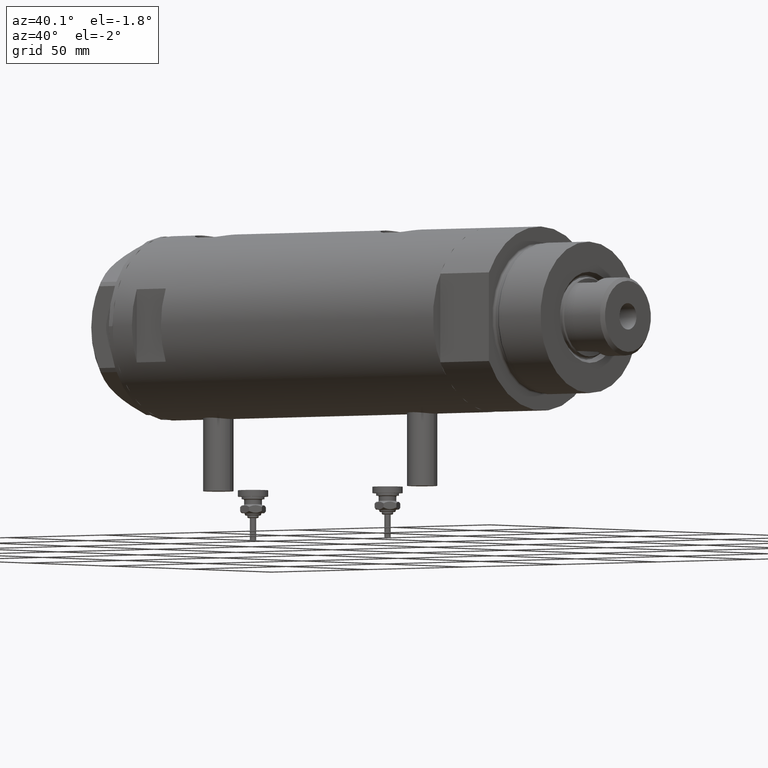
[diagram: clean part render]
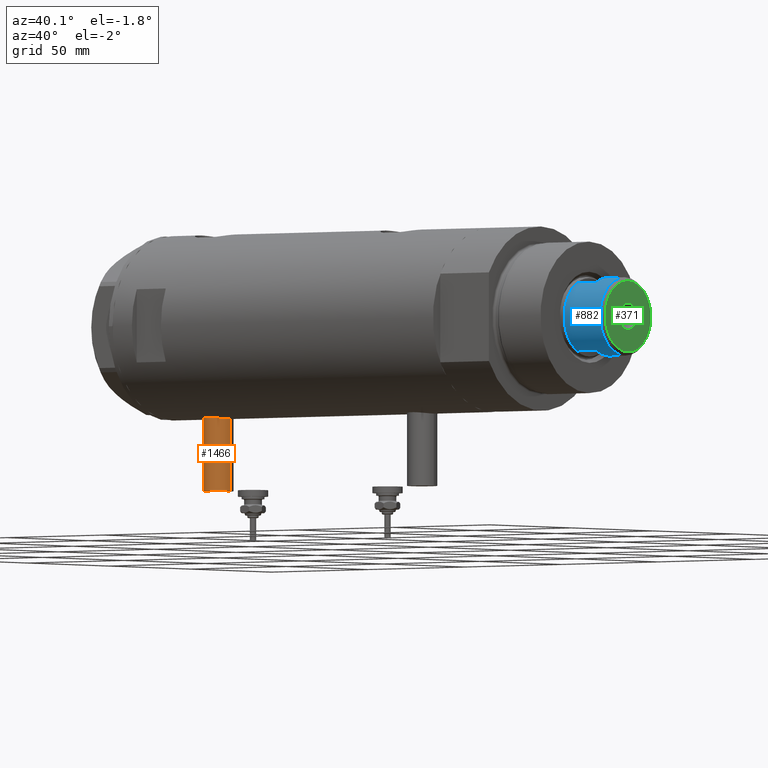
[diagram: same view with three faces highlighted in distinct colors, each labeled with its STEP entity id]
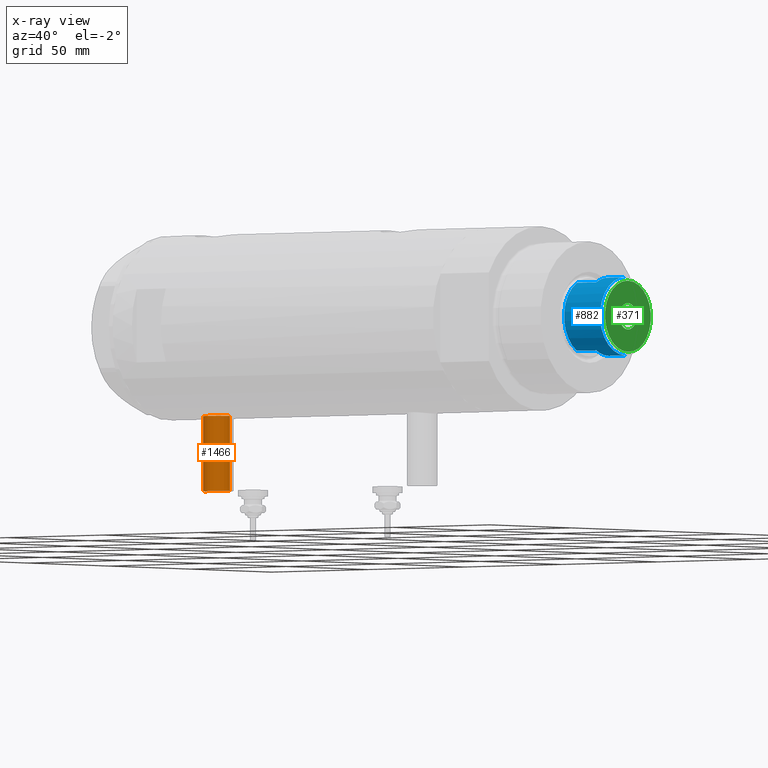
[diagram: x-ray of the same camera — body ghosted, the three highlighted faces saturated]
A machine part, auxiliary view with three faces highlighted in distinct colors.
The next image is the same camera in x-ray (body ghosted, the three faces saturated) — at least one of them is partly hidden behind the body in this view.
Their STEP definitions:

[orange] entity #1466 — the highlighted cylindrical surface (edge-blend (fillet) strip) has radius 6 mm, axis along (0, 0, 1).
#185 = FACE_OUTER_BOUND ( 'NONE', #1725, .T. ) ;
#260 = VECTOR ( 'NONE', #4007, 1000.000000000000000 ) ;
#491 = CYLINDRICAL_SURFACE ( 'NONE', #5262, 5.999999999999998224 ) ;
#984 = EDGE_CURVE ( 'NONE', #4992, #1266, #2172, .T. ) ;
#1130 = DIRECTION ( 'NONE',  ( 0.000000000000000000, 0.000000000000000000, 1.000000000000000000 ) ) ;
#1193 = ORIENTED_EDGE ( 'NONE', *, *, #3791, .F. ) ;
#1266 = VERTEX_POINT ( 'NONE', #4241 ) ;
#1466 = ADVANCED_FACE ( 'NONE', ( #185 ), #491, .T. ) ;
#1687 = CARTESIAN_POINT ( 'NONE',  ( -65.00000000000000000, 0.000000000000000000, 52.90000000000000568 ) ) ;
#1725 = EDGE_LOOP ( 'NONE', ( #1193, #1998, #5393, #4039 ) ) ;
#1777 = CARTESIAN_POINT ( 'NONE',  ( -65.00000000000000000, 0.000000000000000000, 58.89999999999999858 ) ) ;
#1998 = ORIENTED_EDGE ( 'NONE', *, *, #2945, .F. ) ;
#2024 = DIRECTION ( 'NONE',  ( 0.000000000000000000, 0.000000000000000000, -1.000000000000000000 ) ) ;
#2172 = LINE ( 'NONE', #4871, #260 ) ;
#2216 = EDGE_CURVE ( 'NONE', #1266, #4439, #5882, .T. ) ;
#2902 = CARTESIAN_POINT ( 'NONE',  ( -65.00000000000000000, 7.347880794884112834E-16, 64.90000000000000568 ) ) ;
#2945 = EDGE_CURVE ( 'NONE', #4992, #3117, #3306, .T. ) ;
#2987 = DIRECTION ( 'NONE',  ( 1.000000000000000000, -0.000000000000000000, -0.000000000000000000 ) ) ;
#3117 = VERTEX_POINT ( 'NONE', #4806 ) ;
#3306 = CIRCLE ( 'NONE', #4374, 5.999999999999998224 ) ;
#3791 = EDGE_CURVE ( 'NONE', #3117, #4439, #5211, .T. ) ;
#4007 = DIRECTION ( 'NONE',  ( 1.000000000000000000, -0.000000000000000000, -0.000000000000000000 ) ) ;
#4039 = ORIENTED_EDGE ( 'NONE', *, *, #2216, .T. ) ;
#4128 = DIRECTION ( 'NONE',  ( -1.000000000000000000, 0.000000000000000000, 0.000000000000000000 ) ) ;
#4230 = DIRECTION ( 'NONE',  ( 1.000000000000000000, -0.000000000000000000, -0.000000000000000000 ) ) ;
#4241 = CARTESIAN_POINT ( 'NONE',  ( -35.29999999999999716, 0.000000000000000000, 52.90000000000000568 ) ) ;
#4374 = AXIS2_PLACEMENT_3D ( 'NONE', #1777, #4128, #5448 ) ;
#4439 = VERTEX_POINT ( 'NONE', #5880 ) ;
#4642 = AXIS2_PLACEMENT_3D ( 'NONE', #5150, #5247, #1130 ) ;
#4806 = CARTESIAN_POINT ( 'NONE',  ( -65.00000000000000000, 7.347880794884108889E-16, 64.90000000000000568 ) ) ;
#4871 = CARTESIAN_POINT ( 'NONE',  ( -65.00000000000000000, 0.000000000000000000, 52.90000000000000568 ) ) ;
#4992 = VERTEX_POINT ( 'NONE', #1687 ) ;
#5057 = CARTESIAN_POINT ( 'NONE',  ( -65.00000000000000000, 0.000000000000000000, 58.89999999999999858 ) ) ;
#5150 = CARTESIAN_POINT ( 'NONE',  ( -35.29999999999999716, 0.000000000000000000, 58.89999999999999858 ) ) ;
#5211 = LINE ( 'NONE', #2902, #5332 ) ;
#5247 = DIRECTION ( 'NONE',  ( -1.000000000000000000, 0.000000000000000000, 0.000000000000000000 ) ) ;
#5262 = AXIS2_PLACEMENT_3D ( 'NONE', #5057, #2987, #2024 ) ;
#5332 = VECTOR ( 'NONE', #4230, 1000.000000000000000 ) ;
#5393 = ORIENTED_EDGE ( 'NONE', *, *, #984, .T. ) ;
#5448 = DIRECTION ( 'NONE',  ( 0.000000000000000000, 0.000000000000000000, 1.000000000000000000 ) ) ;
#5880 = CARTESIAN_POINT ( 'NONE',  ( -35.29999999999999716, 7.347880794884108889E-16, 64.90000000000000568 ) ) ;
#5882 = CIRCLE ( 'NONE', #4642, 5.999999999999998224 ) ;

[blue] entity #882 — the highlighted cylindrical surface (partial cylindrical patch) has radius 15.5 mm, axis along (-1, -0, 0).
#13 = EDGE_CURVE ( 'NONE', #1677, #3091, #4954, .T. ) ;
#27 = VECTOR ( 'NONE', #489, 1000.000000000000000 ) ;
#370 = CARTESIAN_POINT ( 'NONE',  ( 15.50000000000000178, 1.898202538678397557E-15, 200.0000000000000000 ) ) ;
#387 = CARTESIAN_POINT ( 'NONE',  ( 13.48630416385453046, -7.639999999999995239, 200.0000000000000000 ) ) ;
#489 = DIRECTION ( 'NONE',  ( -0.000000000000000000, -0.000000000000000000, -1.000000000000000000 ) ) ;
#507 = CARTESIAN_POINT ( 'NONE',  ( 15.49999999999999822, 1.898202538678397163E-15, 208.5999999999999659 ) ) ;
#644 = CARTESIAN_POINT ( 'NONE',  ( -15.50000000000000178, 0.000000000000000000, 200.0000000000000000 ) ) ;
#764 = DIRECTION ( 'NONE',  ( 0.000000000000000000, 0.000000000000000000, 1.000000000000000000 ) ) ;
#859 = ORIENTED_EDGE ( 'NONE', *, *, #4185, .F. ) ;
#882 = ADVANCED_FACE ( 'NONE', ( #3073 ), #1661, .T. ) ;
#983 = CARTESIAN_POINT ( 'NONE',  ( 0.000000000000000000, 0.000000000000000000, 200.0000000000000000 ) ) ;
#1092 = CARTESIAN_POINT ( 'NONE',  ( -13.48630416385452335, -7.640000000000004121, 200.0000000000000000 ) ) ;
#1154 = CARTESIAN_POINT ( 'NONE',  ( 0.000000000000000000, 0.000000000000000000, 208.5999999999999659 ) ) ;
#1244 = VERTEX_POINT ( 'NONE', #5574 ) ;
#1260 = EDGE_CURVE ( 'NONE', #1677, #1244, #3783, .T. ) ;
#1390 = CIRCLE ( 'NONE', #5413, 15.49999999999999822 ) ;
#1419 = VERTEX_POINT ( 'NONE', #4754 ) ;
#1423 = CARTESIAN_POINT ( 'NONE',  ( 15.49999999999999822, 1.898202538678397163E-15, 200.0000000000000000 ) ) ;
#1618 = VECTOR ( 'NONE', #3757, 1000.000000000000000 ) ;
#1661 = CYLINDRICAL_SURFACE ( 'NONE', #4403, 15.49999999999999822 ) ;
#1677 = VERTEX_POINT ( 'NONE', #387 ) ;
#1741 = EDGE_LOOP ( 'NONE', ( #859, #5922, #5650, #5653, #4661, #2056, #2885, #2882 ) ) ;
#1916 = CARTESIAN_POINT ( 'NONE',  ( 13.48630416385453046, -7.639999999999995239, 200.0000000000000000 ) ) ;
#1994 = CIRCLE ( 'NONE', #4780, 15.50000000000000000 ) ;
#2056 = ORIENTED_EDGE ( 'NONE', *, *, #3427, .T. ) ;
#2230 = CARTESIAN_POINT ( 'NONE',  ( 0.000000000000000000, 0.000000000000000000, 190.0000000000000000 ) ) ;
#2471 = EDGE_CURVE ( 'NONE', #4821, #5728, #2775, .T. ) ;
#2591 = DIRECTION ( 'NONE',  ( -1.000000000000000000, 0.000000000000000000, 0.000000000000000000 ) ) ;
#2597 = DIRECTION ( 'NONE',  ( 1.000000000000000000, 0.000000000000000000, 0.000000000000000000 ) ) ;
#2650 = CARTESIAN_POINT ( 'NONE',  ( 0.000000000000000000, 0.000000000000000000, 200.0000000000000000 ) ) ;
#2653 = VERTEX_POINT ( 'NONE', #644 ) ;
#2775 = LINE ( 'NONE', #4611, #27 ) ;
#2817 = DIRECTION ( 'NONE',  ( 0.000000000000000000, 0.000000000000000000, 1.000000000000000000 ) ) ;
#2826 = VERTEX_POINT ( 'NONE', #507 ) ;
#2866 = LINE ( 'NONE', #1423, #3617 ) ;
#2882 = ORIENTED_EDGE ( 'NONE', *, *, #13, .T. ) ;
#2885 = ORIENTED_EDGE ( 'NONE', *, *, #1260, .F. ) ;
#3073 = FACE_OUTER_BOUND ( 'NONE', #1741, .T. ) ;
#3091 = VERTEX_POINT ( 'NONE', #370 ) ;
#3131 = CIRCLE ( 'NONE', #4950, 15.49999999999999822 ) ;
#3388 = CARTESIAN_POINT ( 'NONE',  ( -13.48630416385452513, -7.639999999999921521, 190.0000000000000000 ) ) ;
#3427 = EDGE_CURVE ( 'NONE', #5728, #1244, #1390, .T. ) ;
#3617 = VECTOR ( 'NONE', #5175, 1000.000000000000000 ) ;
#3757 = DIRECTION ( 'NONE',  ( -0.000000000000000000, -0.000000000000000000, -1.000000000000000000 ) ) ;
#3783 = LINE ( 'NONE', #1916, #1618 ) ;
#3898 = CARTESIAN_POINT ( 'NONE',  ( 0.000000000000000000, 0.000000000000000000, 200.0000000000000000 ) ) ;
#4024 = CARTESIAN_POINT ( 'NONE',  ( -15.49999999999999822, 0.000000000000000000, 200.0000000000000000 ) ) ;
#4053 = EDGE_CURVE ( 'NONE', #1419, #2653, #4069, .T. ) ;
#4066 = DIRECTION ( 'NONE',  ( 0.000000000000000000, 0.000000000000000000, 1.000000000000000000 ) ) ;
#4069 = LINE ( 'NONE', #4024, #4289 ) ;
#4185 = EDGE_CURVE ( 'NONE', #2826, #3091, #2866, .T. ) ;
#4289 = VECTOR ( 'NONE', #5019, 1000.000000000000000 ) ;
#4393 = EDGE_CURVE ( 'NONE', #2826, #1419, #3131, .T. ) ;
#4403 = AXIS2_PLACEMENT_3D ( 'NONE', #2650, #5852, #2591 ) ;
#4611 = CARTESIAN_POINT ( 'NONE',  ( -13.48630416385452691, -7.640000000000001457, 200.0000000000000000 ) ) ;
#4655 = DIRECTION ( 'NONE',  ( 1.000000000000000000, 0.000000000000000000, 0.000000000000000000 ) ) ;
#4661 = ORIENTED_EDGE ( 'NONE', *, *, #2471, .T. ) ;
#4754 = CARTESIAN_POINT ( 'NONE',  ( -15.49999999999999822, 0.000000000000000000, 208.5999999999999659 ) ) ;
#4780 = AXIS2_PLACEMENT_3D ( 'NONE', #3898, #764, #2597 ) ;
#4821 = VERTEX_POINT ( 'NONE', #1092 ) ;
#4950 = AXIS2_PLACEMENT_3D ( 'NONE', #1154, #5770, #5747 ) ;
#4954 = CIRCLE ( 'NONE', #5812, 15.50000000000000000 ) ;
#5019 = DIRECTION ( 'NONE',  ( -0.000000000000000000, -0.000000000000000000, -1.000000000000000000 ) ) ;
#5175 = DIRECTION ( 'NONE',  ( -0.000000000000000000, -0.000000000000000000, -1.000000000000000000 ) ) ;
#5413 = AXIS2_PLACEMENT_3D ( 'NONE', #2230, #4066, #5920 ) ;
#5574 = CARTESIAN_POINT ( 'NONE',  ( 13.48630416385452691, -7.639999999999914415, 190.0000000000000000 ) ) ;
#5598 = EDGE_CURVE ( 'NONE', #2653, #4821, #1994, .T. ) ;
#5650 = ORIENTED_EDGE ( 'NONE', *, *, #4053, .T. ) ;
#5653 = ORIENTED_EDGE ( 'NONE', *, *, #5598, .T. ) ;
#5728 = VERTEX_POINT ( 'NONE', #3388 ) ;
#5747 = DIRECTION ( 'NONE',  ( 1.000000000000000000, 0.000000000000000000, 0.000000000000000000 ) ) ;
#5770 = DIRECTION ( 'NONE',  ( 0.000000000000000000, 0.000000000000000000, -1.000000000000000000 ) ) ;
#5812 = AXIS2_PLACEMENT_3D ( 'NONE', #983, #2817, #4655 ) ;
#5852 = DIRECTION ( 'NONE',  ( -0.000000000000000000, -0.000000000000000000, -1.000000000000000000 ) ) ;
#5920 = DIRECTION ( 'NONE',  ( 1.000000000000000000, 0.000000000000000000, 0.000000000000000000 ) ) ;
#5922 = ORIENTED_EDGE ( 'NONE', *, *, #4393, .T. ) ;

[green] entity #371 — the highlighted planar face has unit normal (1, 0, -0).
#11 = CARTESIAN_POINT ( 'NONE',  ( 0.000000000000000000, 0.000000000000000000, 210.0000000000000284 ) ) ;
#128 = EDGE_CURVE ( 'NONE', #5911, #4142, #3534, .T. ) ;
#371 = ADVANCED_FACE ( 'NONE', ( #686, #2424 ), #2845, .T. ) ;
#379 = ORIENTED_EDGE ( 'NONE', *, *, #128, .T. ) ;
#390 = EDGE_CURVE ( 'NONE', #2314, #3700, #2473, .T. ) ;
#447 = AXIS2_PLACEMENT_3D ( 'NONE', #4678, #1132, #564 ) ;
#472 = ORIENTED_EDGE ( 'NONE', *, *, #977, .F. ) ;
#499 = DIRECTION ( 'NONE',  ( 0.000000000000000000, 0.000000000000000000, 1.000000000000000000 ) ) ;
#564 = DIRECTION ( 'NONE',  ( 1.000000000000000000, 0.000000000000000000, -0.000000000000000000 ) ) ;
#642 = AXIS2_PLACEMENT_3D ( 'NONE', #5671, #1098, #3815 ) ;
#686 = FACE_OUTER_BOUND ( 'NONE', #3572, .T. ) ;
#724 = CARTESIAN_POINT ( 'NONE',  ( 0.000000000000000000, 0.000000000000000000, 210.0000000000000284 ) ) ;
#919 = EDGE_LOOP ( 'NONE', ( #472, #2437 ) ) ;
#977 = EDGE_CURVE ( 'NONE', #3700, #2314, #5917, .T. ) ;
#1010 = DIRECTION ( 'NONE',  ( 1.000000000000000000, 0.000000000000000000, 0.000000000000000000 ) ) ;
#1098 = DIRECTION ( 'NONE',  ( -0.000000000000000000, -0.000000000000000000, 1.000000000000000000 ) ) ;
#1132 = DIRECTION ( 'NONE',  ( 0.000000000000000000, 0.000000000000000000, 1.000000000000000000 ) ) ;
#1632 = DIRECTION ( 'NONE',  ( 0.000000000000000000, 0.000000000000000000, 1.000000000000000000 ) ) ;
#2314 = VERTEX_POINT ( 'NONE', #4889 ) ;
#2424 = FACE_BOUND ( 'NONE', #919, .T. ) ;
#2437 = ORIENTED_EDGE ( 'NONE', *, *, #390, .F. ) ;
#2473 = CIRCLE ( 'NONE', #642, 5.249999999999998224 ) ;
#2556 = DIRECTION ( 'NONE',  ( -0.000000000000000000, -0.000000000000000000, 1.000000000000000000 ) ) ;
#2845 = PLANE ( 'NONE',  #447 ) ;
#3050 = CIRCLE ( 'NONE', #4492, 14.09999999999997300 ) ;
#3534 = CIRCLE ( 'NONE', #4670, 14.09999999999997300 ) ;
#3572 = EDGE_LOOP ( 'NONE', ( #3698, #379 ) ) ;
#3698 = ORIENTED_EDGE ( 'NONE', *, *, #5248, .T. ) ;
#3700 = VERTEX_POINT ( 'NONE', #5447 ) ;
#3815 = DIRECTION ( 'NONE',  ( 1.000000000000000000, 0.000000000000000000, 0.000000000000000000 ) ) ;
#3826 = DIRECTION ( 'NONE',  ( 1.000000000000000000, 0.000000000000000000, 0.000000000000000000 ) ) ;
#3857 = CARTESIAN_POINT ( 'NONE',  ( 0.000000000000000000, 0.000000000000000000, 210.0000000000000284 ) ) ;
#4142 = VERTEX_POINT ( 'NONE', #5410 ) ;
#4492 = AXIS2_PLACEMENT_3D ( 'NONE', #11, #499, #1010 ) ;
#4536 = CARTESIAN_POINT ( 'NONE',  ( 14.09999999999997300, 1.812477262738080903E-15, 210.0000000000000284 ) ) ;
#4670 = AXIS2_PLACEMENT_3D ( 'NONE', #3857, #1632, #3826 ) ;
#4678 = CARTESIAN_POINT ( 'NONE',  ( 0.000000000000000000, 0.000000000000000000, 210.0000000000000284 ) ) ;
#4889 = CARTESIAN_POINT ( 'NONE',  ( -5.249999999999998224, 6.429395695523602181E-16, 210.0000000000000284 ) ) ;
#5248 = EDGE_CURVE ( 'NONE', #4142, #5911, #3050, .T. ) ;
#5348 = DIRECTION ( 'NONE',  ( 1.000000000000000000, 0.000000000000000000, 0.000000000000000000 ) ) ;
#5410 = CARTESIAN_POINT ( 'NONE',  ( -14.09999999999997300, 0.000000000000000000, 210.0000000000000284 ) ) ;
#5447 = CARTESIAN_POINT ( 'NONE',  ( 5.249999999999998224, 0.000000000000000000, 210.0000000000000284 ) ) ;
#5671 = CARTESIAN_POINT ( 'NONE',  ( 0.000000000000000000, 0.000000000000000000, 210.0000000000000284 ) ) ;
#5730 = AXIS2_PLACEMENT_3D ( 'NONE', #724, #2556, #5348 ) ;
#5911 = VERTEX_POINT ( 'NONE', #4536 ) ;
#5917 = CIRCLE ( 'NONE', #5730, 5.249999999999998224 ) ;